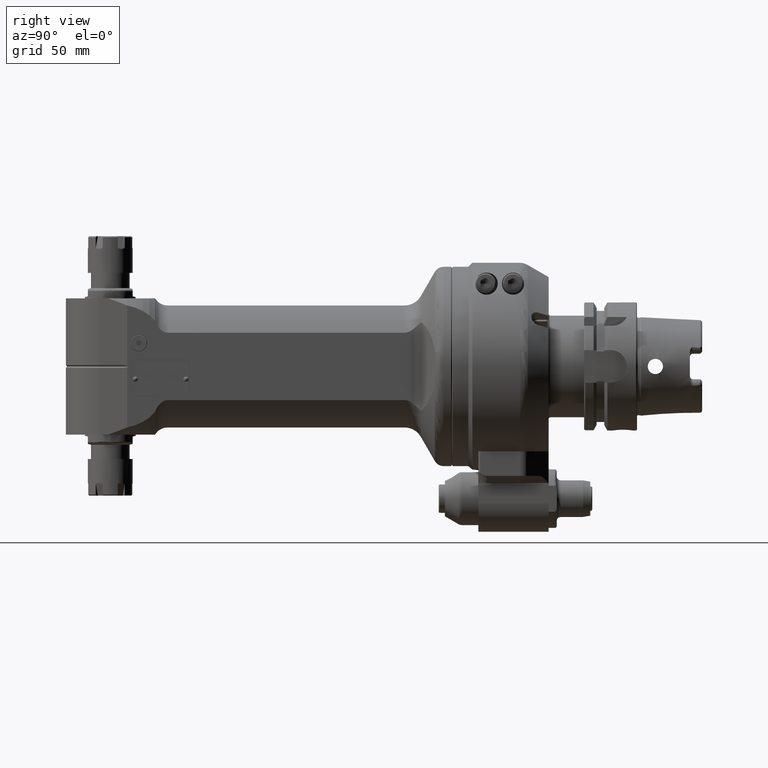
[diagram: clean part render]
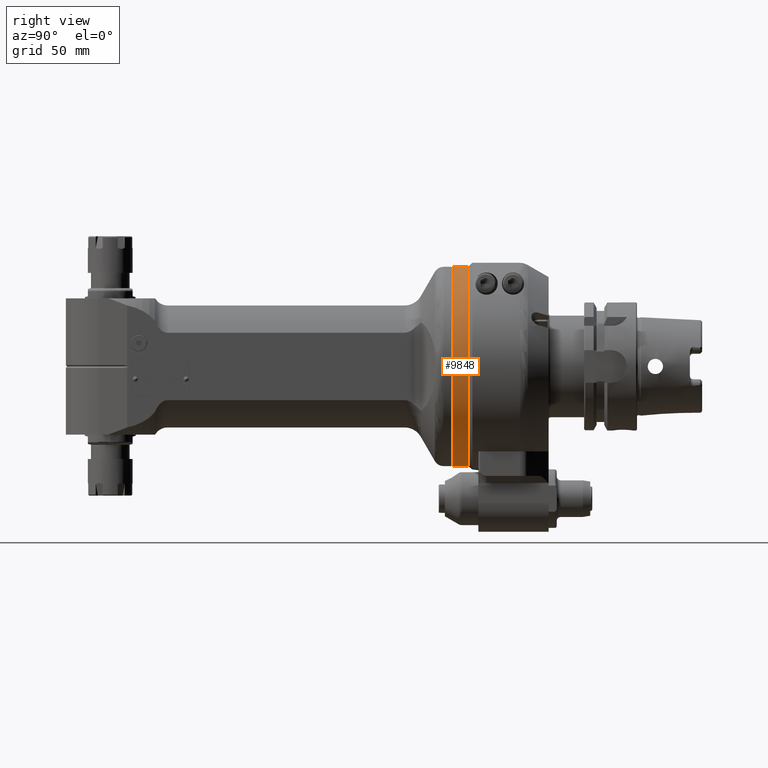
[diagram: same view with one face highlighted and labeled with its STEP entity id]
A machine part, right view. The second image highlights one B-rep face of the part: STEP entity #9848.
In plain terms, the highlighted cylindrical surface (bore or boss wall) has radius 49 mm, axis along (-0, 1, 0).
Its self-contained STEP definition (entity closure, byte-faithful):
#944=FACE_OUTER_BOUND('',#1548,.T.);
#1548=EDGE_LOOP('',(#6890,#6891,#6892,#6893));
#2244=LINE('',#15128,#2931);
#2931=VECTOR('',#11859,49.);
#3627=CIRCLE('',#10570,49.);
#3628=CIRCLE('',#10572,49.);
#4179=VERTEX_POINT('',#15123);
#4180=VERTEX_POINT('',#15126);
#5231=EDGE_CURVE('',#4179,#4179,#3627,.T.);
#5232=EDGE_CURVE('',#4180,#4180,#3628,.T.);
#5233=EDGE_CURVE('',#4180,#4179,#2244,.T.);
#6890=ORIENTED_EDGE('',*,*,#5232,.F.);
#6891=ORIENTED_EDGE('',*,*,#5233,.T.);
#6892=ORIENTED_EDGE('',*,*,#5231,.F.);
#6893=ORIENTED_EDGE('',*,*,#5233,.F.);
#9671=CYLINDRICAL_SURFACE('',#10571,49.);
#9848=ADVANCED_FACE('',(#944),#9671,.T.);
#10570=AXIS2_PLACEMENT_3D('',#15124,#11853,#11854);
#10571=AXIS2_PLACEMENT_3D('',#15125,#11855,#11856);
#10572=AXIS2_PLACEMENT_3D('',#15127,#11857,#11858);
#11853=DIRECTION('center_axis',(1.,0.,0.));
#11854=DIRECTION('ref_axis',(0.,1.,0.));
#11855=DIRECTION('center_axis',(-1.,0.,0.));
#11856=DIRECTION('ref_axis',(0.,1.,0.));
#11857=DIRECTION('center_axis',(-1.,0.,0.));
#11858=DIRECTION('ref_axis',(0.,-1.,0.));
#11859=DIRECTION('',(1.,0.,0.));
#15123=CARTESIAN_POINT('',(11.7,-49.,0.));
#15124=CARTESIAN_POINT('Origin',(11.7,0.,0.));
#15125=CARTESIAN_POINT('Origin',(8.3,0.,0.));
#15126=CARTESIAN_POINT('',(4.,-49.,0.));
#15127=CARTESIAN_POINT('Origin',(4.,0.,0.));
#15128=CARTESIAN_POINT('',(8.3,-49.,6.00076931582203E-15));